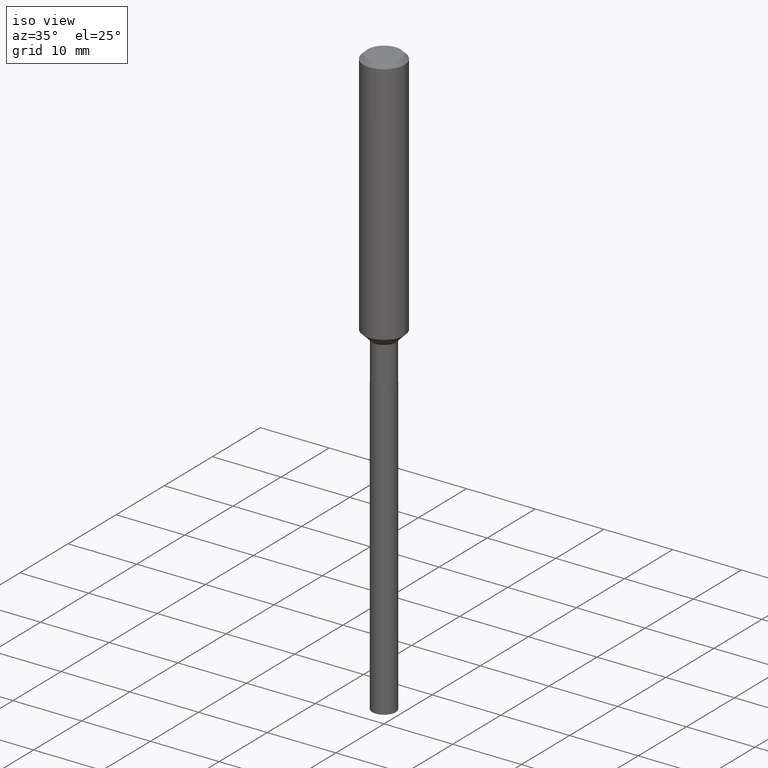
[diagram: clean part render]
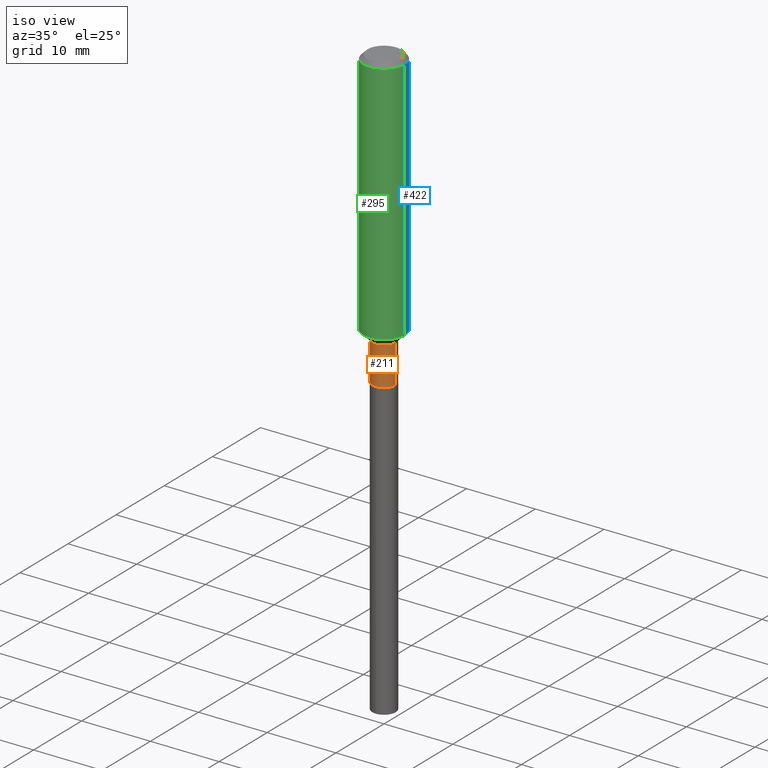
[diagram: same view with three faces highlighted in distinct colors, each labeled with its STEP entity id]
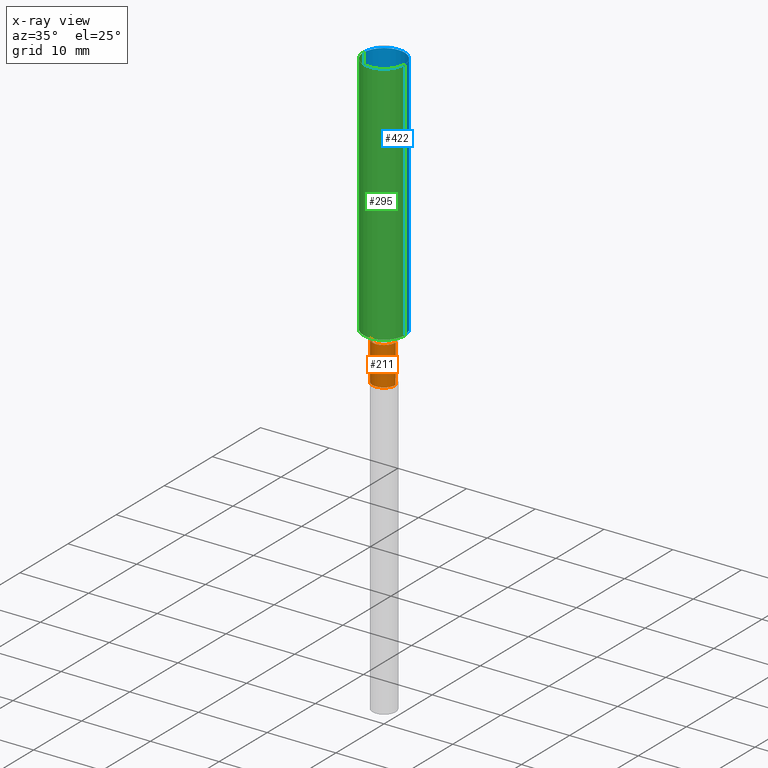
[diagram: x-ray of the same camera — body ghosted, the three highlighted faces saturated]
A machine part, iso view with three faces highlighted in distinct colors.
The next image is the same camera in x-ray (body ghosted, the three faces saturated) — at least one of them is partly hidden behind the body in this view.
Their STEP definitions:

[orange] entity #211 — the highlighted cylindrical surface (edge-blend (fillet) strip) has radius 1.7005 mm, axis along (-0, 0, 1).
#3 = EDGE_CURVE ( 'NONE', #360, #18, #206, .T. ) ;
#18 = VERTEX_POINT ( 'NONE', #365 ) ;
#29 = DIRECTION ( 'NONE',  ( -2.445468806185136597E-29, 3.491481338843145583E-15, 1.000000000000000000 ) ) ;
#32 = CIRCLE ( 'NONE', #458, 0.06694999999999996787 ) ;
#34 = FACE_OUTER_BOUND ( 'NONE', #247, .T. ) ;
#52 = DIRECTION ( 'NONE',  ( 1.000000000000000000, -6.982962677686272233E-15, 0.000000000000000000 ) ) ;
#80 = ORIENTED_EDGE ( 'NONE', *, *, #451, .F. ) ;
#101 = CARTESIAN_POINT ( 'NONE',  ( 0.06694999999999996787, -5.620586659269693771E-15, -1.475899999999999768 ) ) ;
#105 = CARTESIAN_POINT ( 'NONE',  ( 0.000000000000000000, 0.000000000000000000, 0.000000000000000000 ) ) ;
#115 = CARTESIAN_POINT ( 'NONE',  ( -0.06694999999999999563, -5.061781041813841087E-15, -1.696099999999999719 ) ) ;
#119 = CARTESIAN_POINT ( 'NONE',  ( 3.609267411048642290E-29, -5.153077307998597760E-15, -1.475899999999999768 ) ) ;
#135 = CYLINDRICAL_SURFACE ( 'NONE', #441, 0.06694999999999998175 ) ;
#136 = CARTESIAN_POINT ( 'NONE',  ( 4.147759642170609372E-29, -5.921901498811857909E-15, -1.696099999999999719 ) ) ;
#148 = EDGE_CURVE ( 'NONE', #360, #350, #374, .T. ) ;
#169 = EDGE_CURVE ( 'NONE', #350, #274, #456, .T. ) ;
#180 = DIRECTION ( 'NONE',  ( 1.000000000000000000, -6.982962677686266711E-15, 4.876176775795936353E-29 ) ) ;
#199 = ORIENTED_EDGE ( 'NONE', *, *, #148, .T. ) ;
#206 = LINE ( 'NONE', #398, #463 ) ;
#210 = DIRECTION ( 'NONE',  ( -2.445468806185136597E-29, 3.491481338843145583E-15, 1.000000000000000000 ) ) ;
#211 = ADVANCED_FACE ( 'NONE', ( #34 ), #135, .T. ) ;
#212 = DIRECTION ( 'NONE',  ( -2.445468806185136877E-29, 3.491481338843145188E-15, 1.000000000000000000 ) ) ;
#247 = EDGE_LOOP ( 'NONE', ( #466, #199, #323, #80 ) ) ;
#274 = VERTEX_POINT ( 'NONE', #101 ) ;
#294 = AXIS2_PLACEMENT_3D ( 'NONE', #136, #210, #414 ) ;
#323 = ORIENTED_EDGE ( 'NONE', *, *, #169, .T. ) ;
#350 = VERTEX_POINT ( 'NONE', #379 ) ;
#360 = VERTEX_POINT ( 'NONE', #115 ) ;
#365 = CARTESIAN_POINT ( 'NONE',  ( -0.06694999999999996787, -5.061781041813841087E-15, -1.475899999999999768 ) ) ;
#367 = VECTOR ( 'NONE', #212, 39.37007874015748143 ) ;
#374 = CIRCLE ( 'NONE', #294, 0.06694999999999999563 ) ;
#376 = CARTESIAN_POINT ( 'NONE',  ( 0.06694999999999998175, -4.675093512710954190E-16, 3.264600351395378627E-30 ) ) ;
#379 = CARTESIAN_POINT ( 'NONE',  ( 0.06694999999999999563, -6.389410850082953919E-15, -1.696099999999999719 ) ) ;
#397 = DIRECTION ( 'NONE',  ( -2.445468806185136597E-29, 3.491481338843145583E-15, 1.000000000000000000 ) ) ;
#398 = CARTESIAN_POINT ( 'NONE',  ( -0.06694999999999998175, 4.757083615913869448E-16, -3.293227042925658365E-30 ) ) ;
#414 = DIRECTION ( 'NONE',  ( 1.000000000000000000, -6.982962677686269866E-15, 0.000000000000000000 ) ) ;
#440 = DIRECTION ( 'NONE',  ( -2.445468806185136877E-29, 3.491481338843145188E-15, 1.000000000000000000 ) ) ;
#441 = AXIS2_PLACEMENT_3D ( 'NONE', #105, #29, #180 ) ;
#451 = EDGE_CURVE ( 'NONE', #18, #274, #32, .T. ) ;
#456 = LINE ( 'NONE', #376, #367 ) ;
#458 = AXIS2_PLACEMENT_3D ( 'NONE', #119, #397, #52 ) ;
#463 = VECTOR ( 'NONE', #440, 39.37007874015748143 ) ;
#466 = ORIENTED_EDGE ( 'NONE', *, *, #3, .F. ) ;

[blue] entity #422 — the highlighted cylindrical surface (edge-blend (fillet) strip) has radius 2.9997 mm, axis along (-0, 0, 1).
#40 = VERTEX_POINT ( 'NONE', #478 ) ;
#47 = EDGE_LOOP ( 'NONE', ( #270, #55, #317, #187 ) ) ;
#49 = DIRECTION ( 'NONE',  ( 1.000000000000000000, -6.982962677686266711E-15, 4.876176775795936353E-29 ) ) ;
#50 = VERTEX_POINT ( 'NONE', #476 ) ;
#55 = ORIENTED_EDGE ( 'NONE', *, *, #321, .T. ) ;
#58 = EDGE_CURVE ( 'NONE', #342, #40, #471, .T. ) ;
#75 = AXIS2_PLACEMENT_3D ( 'NONE', #88, #235, #240 ) ;
#88 = CARTESIAN_POINT ( 'NONE',  ( 5.776197320209328408E-31, -8.246878922347560526E-17, -0.02362000000000014435 ) ) ;
#96 = AXIS2_PLACEMENT_3D ( 'NONE', #394, #313, #49 ) ;
#97 = DIRECTION ( 'NONE',  ( 1.000000000000000000, -6.982962677686270655E-15, 0.000000000000000000 ) ) ;
#118 = EDGE_CURVE ( 'NONE', #446, #50, #222, .T. ) ;
#128 = DIRECTION ( 'NONE',  ( -2.445468806185136597E-29, 3.491481338843145583E-15, 1.000000000000000000 ) ) ;
#146 = DIRECTION ( 'NONE',  ( -2.445468806185136877E-29, 3.491481338843145188E-15, 1.000000000000000000 ) ) ;
#187 = ORIENTED_EDGE ( 'NONE', *, *, #377, .F. ) ;
#188 = CARTESIAN_POINT ( 'NONE',  ( 0.1181000000000001632, -5.799175929751520291E-15, -1.424749999999999517 ) ) ;
#196 = LINE ( 'NONE', #362, #393 ) ;
#222 = CIRCLE ( 'NONE', #75, 0.1180999999999999966 ) ;
#230 = CYLINDRICAL_SURFACE ( 'NONE', #96, 0.1181000000000000799 ) ;
#235 = DIRECTION ( 'NONE',  ( -2.445468806185136597E-29, 3.491481338843145583E-15, 1.000000000000000000 ) ) ;
#240 = DIRECTION ( 'NONE',  ( 1.000000000000000000, -6.982962677686266711E-15, 0.000000000000000000 ) ) ;
#258 = LINE ( 'NONE', #263, #383 ) ;
#263 = CARTESIAN_POINT ( 'NONE',  ( -0.1181000000000000799, 8.391509709326788873E-16, -5.809262341591047988E-30 ) ) ;
#270 = ORIENTED_EDGE ( 'NONE', *, *, #58, .T. ) ;
#313 = DIRECTION ( 'NONE',  ( -2.445468806185136597E-29, 3.491481338843145583E-15, 1.000000000000000000 ) ) ;
#317 = ORIENTED_EDGE ( 'NONE', *, *, #118, .F. ) ;
#321 = EDGE_CURVE ( 'NONE', #40, #50, #258, .T. ) ;
#322 = CARTESIAN_POINT ( 'NONE',  ( 3.484181681612272465E-29, -4.974488037516770451E-15, -1.424749999999999517 ) ) ;
#342 = VERTEX_POINT ( 'NONE', #188 ) ;
#359 = DIRECTION ( 'NONE',  ( -2.445468806185136877E-29, 3.491481338843145188E-15, 1.000000000000000000 ) ) ;
#362 = CARTESIAN_POINT ( 'NONE',  ( 0.1181000000000000799, -8.246878922347486570E-16, 5.758764772215004644E-30 ) ) ;
#377 = EDGE_CURVE ( 'NONE', #342, #446, #196, .T. ) ;
#383 = VECTOR ( 'NONE', #146, 39.37007874015748143 ) ;
#393 = VECTOR ( 'NONE', #359, 39.37007874015748143 ) ;
#394 = CARTESIAN_POINT ( 'NONE',  ( 0.000000000000000000, 0.000000000000000000, 0.000000000000000000 ) ) ;
#422 = ADVANCED_FACE ( 'NONE', ( #477 ), #230, .T. ) ;
#424 = AXIS2_PLACEMENT_3D ( 'NONE', #322, #128, #97 ) ;
#446 = VERTEX_POINT ( 'NONE', #468 ) ;
#468 = CARTESIAN_POINT ( 'NONE',  ( 0.1180999999999999966, -9.071566814582237199E-16, -0.02362000000000014435 ) ) ;
#471 = CIRCLE ( 'NONE', #424, 0.1181000000000001632 ) ;
#476 = CARTESIAN_POINT ( 'NONE',  ( -0.1180999999999999966, -1.689327442437443377E-15, -0.02362000000000014435 ) ) ;
#477 = FACE_OUTER_BOUND ( 'NONE', #47, .T. ) ;
#478 = CARTESIAN_POINT ( 'NONE',  ( -0.1181000000000001632, -4.135337066584091465E-15, -1.424749999999999517 ) ) ;

[green] entity #295 — the highlighted cylindrical surface (edge-blend (fillet) strip) has radius 2.9997 mm, axis along (-0, 0, 1).
#6 = CYLINDRICAL_SURFACE ( 'NONE', #448, 0.1181000000000000799 ) ;
#12 = AXIS2_PLACEMENT_3D ( 'NONE', #410, #368, #253 ) ;
#40 = VERTEX_POINT ( 'NONE', #478 ) ;
#50 = VERTEX_POINT ( 'NONE', #476 ) ;
#65 = CIRCLE ( 'NONE', #12, 0.1180999999999999966 ) ;
#69 = DIRECTION ( 'NONE',  ( -2.445468806185136597E-29, 3.491481338843145583E-15, 1.000000000000000000 ) ) ;
#146 = DIRECTION ( 'NONE',  ( -2.445468806185136877E-29, 3.491481338843145188E-15, 1.000000000000000000 ) ) ;
#162 = ORIENTED_EDGE ( 'NONE', *, *, #377, .T. ) ;
#174 = CARTESIAN_POINT ( 'NONE',  ( 3.484181681612272465E-29, -4.974488037516770451E-15, -1.424749999999999517 ) ) ;
#188 = CARTESIAN_POINT ( 'NONE',  ( 0.1181000000000001632, -5.799175929751520291E-15, -1.424749999999999517 ) ) ;
#196 = LINE ( 'NONE', #362, #393 ) ;
#219 = FACE_OUTER_BOUND ( 'NONE', #388, .T. ) ;
#226 = CARTESIAN_POINT ( 'NONE',  ( 0.000000000000000000, 0.000000000000000000, 0.000000000000000000 ) ) ;
#253 = DIRECTION ( 'NONE',  ( 1.000000000000000000, -6.982962677686266711E-15, 0.000000000000000000 ) ) ;
#258 = LINE ( 'NONE', #263, #383 ) ;
#263 = CARTESIAN_POINT ( 'NONE',  ( -0.1181000000000000799, 8.391509709326788873E-16, -5.809262341591047988E-30 ) ) ;
#273 = EDGE_CURVE ( 'NONE', #50, #446, #65, .T. ) ;
#286 = EDGE_CURVE ( 'NONE', #40, #342, #305, .T. ) ;
#295 = ADVANCED_FACE ( 'NONE', ( #219 ), #6, .T. ) ;
#305 = CIRCLE ( 'NONE', #409, 0.1181000000000001632 ) ;
#321 = EDGE_CURVE ( 'NONE', #40, #50, #258, .T. ) ;
#330 = ORIENTED_EDGE ( 'NONE', *, *, #286, .T. ) ;
#342 = VERTEX_POINT ( 'NONE', #188 ) ;
#359 = DIRECTION ( 'NONE',  ( -2.445468806185136877E-29, 3.491481338843145188E-15, 1.000000000000000000 ) ) ;
#362 = CARTESIAN_POINT ( 'NONE',  ( 0.1181000000000000799, -8.246878922347486570E-16, 5.758764772215004644E-30 ) ) ;
#368 = DIRECTION ( 'NONE',  ( -2.445468806185136597E-29, 3.491481338843145583E-15, 1.000000000000000000 ) ) ;
#377 = EDGE_CURVE ( 'NONE', #342, #446, #196, .T. ) ;
#381 = DIRECTION ( 'NONE',  ( 1.000000000000000000, -6.982962677686266711E-15, 4.876176775795936353E-29 ) ) ;
#383 = VECTOR ( 'NONE', #146, 39.37007874015748143 ) ;
#386 = DIRECTION ( 'NONE',  ( 1.000000000000000000, -6.982962677686270655E-15, 0.000000000000000000 ) ) ;
#388 = EDGE_LOOP ( 'NONE', ( #405, #330, #162, #390 ) ) ;
#390 = ORIENTED_EDGE ( 'NONE', *, *, #273, .F. ) ;
#393 = VECTOR ( 'NONE', #359, 39.37007874015748143 ) ;
#405 = ORIENTED_EDGE ( 'NONE', *, *, #321, .F. ) ;
#409 = AXIS2_PLACEMENT_3D ( 'NONE', #174, #69, #386 ) ;
#410 = CARTESIAN_POINT ( 'NONE',  ( 5.776197320209328408E-31, -8.246878922347560526E-17, -0.02362000000000014435 ) ) ;
#446 = VERTEX_POINT ( 'NONE', #468 ) ;
#448 = AXIS2_PLACEMENT_3D ( 'NONE', #226, #460, #381 ) ;
#460 = DIRECTION ( 'NONE',  ( -2.445468806185136597E-29, 3.491481338843145583E-15, 1.000000000000000000 ) ) ;
#468 = CARTESIAN_POINT ( 'NONE',  ( 0.1180999999999999966, -9.071566814582237199E-16, -0.02362000000000014435 ) ) ;
#476 = CARTESIAN_POINT ( 'NONE',  ( -0.1180999999999999966, -1.689327442437443377E-15, -0.02362000000000014435 ) ) ;
#478 = CARTESIAN_POINT ( 'NONE',  ( -0.1181000000000001632, -4.135337066584091465E-15, -1.424749999999999517 ) ) ;